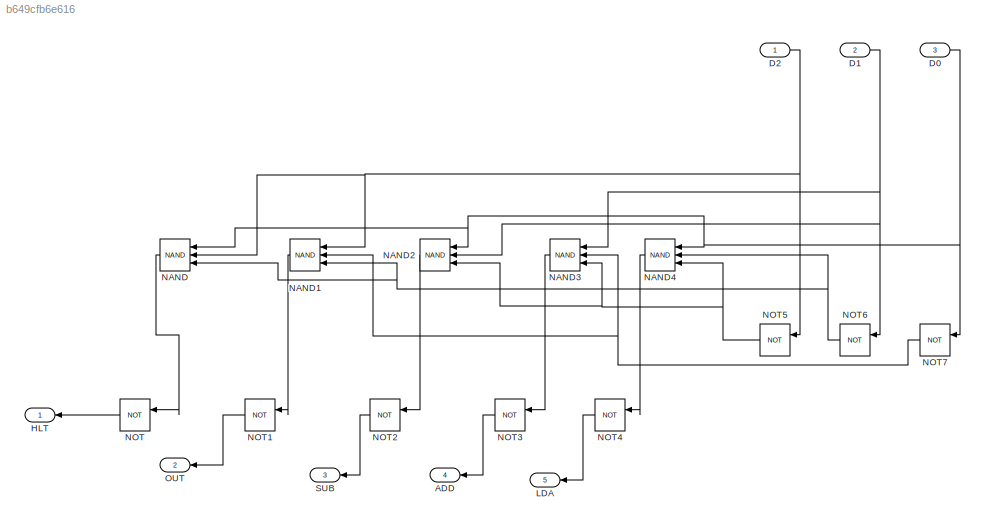
MODEL slx_b649cfb6e616
KIND model
CONFIG AbsTol = auto
CONFIG EnableMultiTasking = off
CONFIG FixedStep = auto
CONFIG MaxStep = auto
CONFIG MinStep = auto
CONFIG RelTol = 1e-3
CONFIG SampleTimeConstraint = Unconstrained
CONFIG SolverName = VariableStepAuto
CONFIG StartTime = 0.0
CONFIG StopTime = 10.0
BLOCK [Outport] ADD
  NameLocation = top
  Port = 4
BLOCK [Inport] D0
  Port = 3
BLOCK [Inport] D1
  Port = 2
BLOCK [Inport] D2
BLOCK [Outport] HLT
  NameLocation = top
BLOCK [Outport] LDA
  NameLocation = top
  Port = 5
BLOCK [Logic] NAND
  AllPortsSameDT = off
  IconShape = distinctive
  Inputs = 3
  NameLocation = top
  Operator = NAND
  OutDataTypeStr = boolean
BLOCK [Logic] NAND1
  AllPortsSameDT = off
  IconShape = distinctive
  Inputs = 3
  NameLocation = top
  Operator = NAND
  OutDataTypeStr = boolean
BLOCK [Logic] NAND2
  AllPortsSameDT = off
  IconShape = distinctive
  Inputs = 3
  NameLocation = top
  Operator = NAND
  OutDataTypeStr = boolean
BLOCK [Logic] NAND3
  AllPortsSameDT = off
  IconShape = distinctive
  Inputs = 3
  NameLocation = top
  Operator = NAND
  OutDataTypeStr = boolean
BLOCK [Logic] NAND4
  AllPortsSameDT = off
  IconShape = distinctive
  Inputs = 3
  NameLocation = top
  Operator = NAND
  OutDataTypeStr = boolean
BLOCK [Logic] NOT
  AllPortsSameDT = off
  IconShape = distinctive
  NameLocation = top
  Operator = NOT
  OutDataTypeStr = boolean
BLOCK [Logic] NOT1
  AllPortsSameDT = off
  IconShape = distinctive
  NameLocation = top
  Operator = NOT
  OutDataTypeStr = boolean
BLOCK [Logic] NOT2
  AllPortsSameDT = off
  IconShape = distinctive
  NameLocation = top
  Operator = NOT
  OutDataTypeStr = boolean
BLOCK [Logic] NOT3
  AllPortsSameDT = off
  IconShape = distinctive
  NameLocation = top
  Operator = NOT
  OutDataTypeStr = boolean
BLOCK [Logic] NOT4
  AllPortsSameDT = off
  IconShape = distinctive
  NameLocation = top
  Operator = NOT
  OutDataTypeStr = boolean
BLOCK [Logic] NOT5
  AllPortsSameDT = off
  IconShape = distinctive
  NameLocation = top
  Operator = NOT
  OutDataTypeStr = boolean
BLOCK [Logic] NOT6
  AllPortsSameDT = off
  IconShape = distinctive
  NameLocation = top
  Operator = NOT
  OutDataTypeStr = boolean
BLOCK [Logic] NOT7
  AllPortsSameDT = off
  IconShape = distinctive
  NameLocation = top
  Operator = NOT
  OutDataTypeStr = boolean
BLOCK [Outport] OUT
  NameLocation = top
  Port = 2
BLOCK [Outport] SUB
  NameLocation = top
  Port = 3
NET D0:1 -> NAND2:1, NAND4:1, NAND:1, NOT7:1
NET D1:1 -> NAND2:2, NAND3:1, NOT6:1
NET D2:1 -> NAND1:1, NAND:2, NOT5:1
LINE NAND1:1 -> NOT1:1
LINE NAND2:1 -> NOT2:1
LINE NAND3:1 -> NOT3:1
LINE NAND4:1 -> NOT4:1
LINE NAND:1 -> NOT:1
LINE NOT1:1 -> OUT:1
LINE NOT2:1 -> SUB:1
LINE NOT3:1 -> ADD:1
LINE NOT4:1 -> LDA:1
NET NOT5:1 -> NAND2:3, NAND3:3, NAND4:3
NET NOT6:1 -> NAND1:3, NAND4:2, NAND:3
NET NOT7:1 -> NAND1:2, NAND3:2
LINE NOT:1 -> HLT:1
note: NET lines group one-source signal fan-out (src -> all destinations, sorted); 1:1 wires keep LINE
